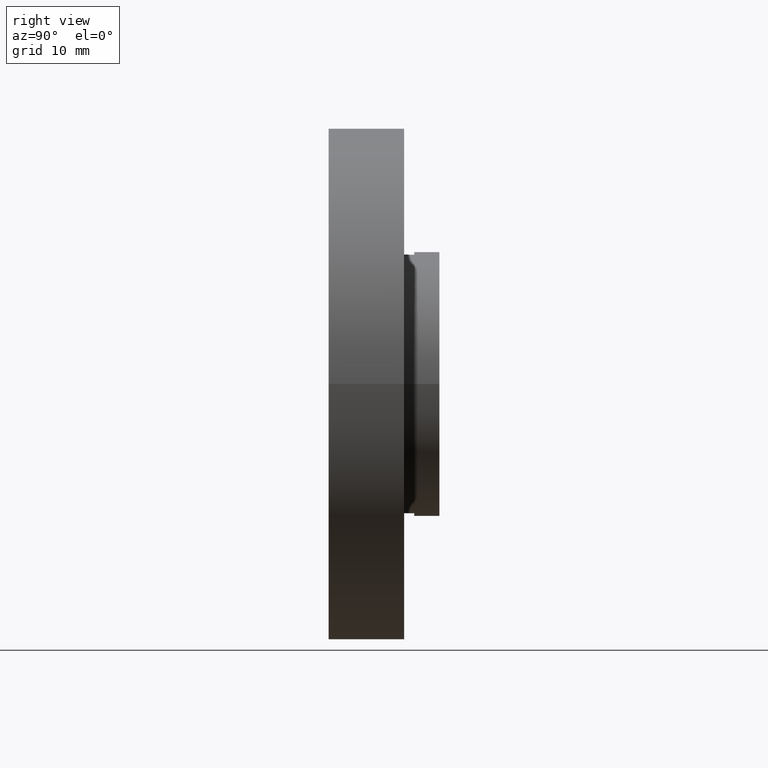
[diagram: clean part render]
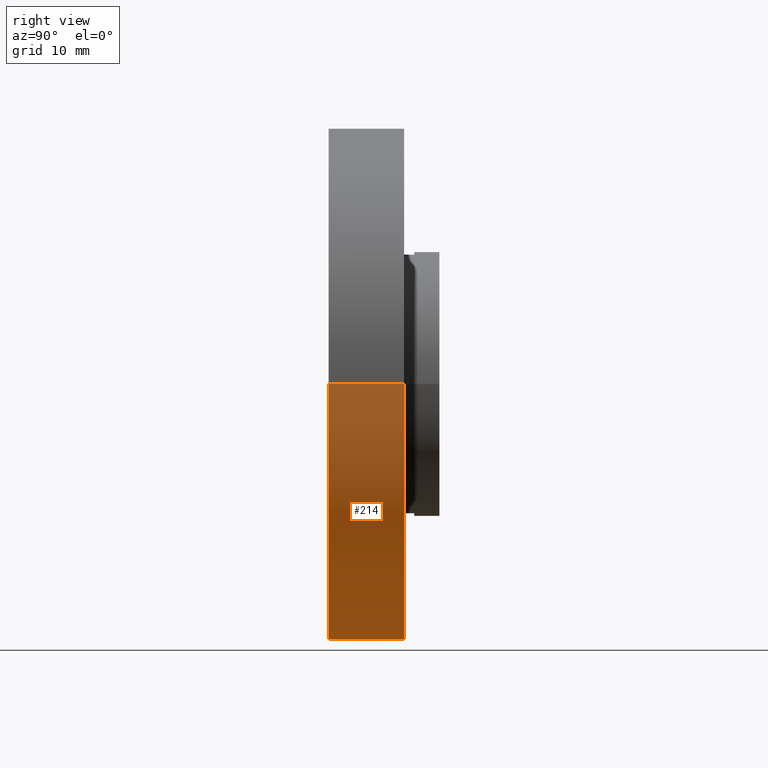
[diagram: same view with one face highlighted and labeled with its STEP entity id]
A machine part, right view. The second image highlights one B-rep face of the part: STEP entity #214.
In plain terms, the highlighted cylindrical surface (partial cylindrical patch) has radius 25.4 mm, axis along (-0, 1, -0).
Its self-contained STEP definition (entity closure, byte-faithful):
#5 = DIRECTION ( 'NONE',  ( -1.224646799147351000E-016, 1.000000000000000000, -0.0000000000000000000 ) ) ;
#6 = ORIENTED_EDGE ( 'NONE', *, *, #578, .T. ) ;
#18 = DIRECTION ( 'NONE',  ( -1.000000000000000000, -1.224646799147351000E-016, 0.0000000000000000000 ) ) ;
#20 = CARTESIAN_POINT ( 'NONE',  ( 1.149455719078123100E-015, 7.499999999999996400, 0.0000000000000000000 ) ) ;
#38 = CARTESIAN_POINT ( 'NONE',  ( -25.39999999999999100, -6.580049821787884700E-015, 0.0000000000000000000 ) ) ;
#65 = CARTESIAN_POINT ( 'NONE',  ( 25.39999999999999900, -3.588440821193433400E-016, 3.110602869834276900E-015 ) ) ;
#66 = DIRECTION ( 'NONE',  ( -1.224646799147351000E-016, 1.000000000000000000, -0.0000000000000000000 ) ) ;
#76 = VERTEX_POINT ( 'NONE', #38 ) ;
#77 = CIRCLE ( 'NONE', #227, 25.39999999999999500 ) ;
#83 = CYLINDRICAL_SURFACE ( 'NONE', #538, 25.39999999999999900 ) ;
#89 = CARTESIAN_POINT ( 'NONE',  ( 25.39999999999999900, 16.88601823708208000, 3.110602869834276900E-015 ) ) ;
#90 = VECTOR ( 'NONE', #165, 1000.000000000000000 ) ;
#153 = EDGE_CURVE ( 'NONE', #534, #500, #240, .T. ) ;
#165 = DIRECTION ( 'NONE',  ( -1.224646799147351000E-016, 1.000000000000000000, -0.0000000000000000000 ) ) ;
#180 = VECTOR ( 'NONE', #5, 1000.000000000000000 ) ;
#204 = LINE ( 'NONE', #586, #180 ) ;
#214 = ADVANCED_FACE ( 'NONE', ( #577 ), #83, .T. ) ;
#227 = AXIS2_PLACEMENT_3D ( 'NONE', #591, #346, #18 ) ;
#240 = CIRCLE ( 'NONE', #474, 25.39999999999999900 ) ;
#259 = CARTESIAN_POINT ( 'NONE',  ( 25.39999999999999900, 7.500000000000000000, 3.110602869834276900E-015 ) ) ;
#346 = DIRECTION ( 'NONE',  ( -1.224646799147351000E-016, 1.000000000000000000, -0.0000000000000000000 ) ) ;
#350 = DIRECTION ( 'NONE',  ( -1.000000000000000000, -1.365923996832131600E-016, 0.0000000000000000000 ) ) ;
#376 = ORIENTED_EDGE ( 'NONE', *, *, #484, .T. ) ;
#379 = EDGE_LOOP ( 'NONE', ( #555, #376, #6, #433 ) ) ;
#395 = DIRECTION ( 'NONE',  ( -1.224646799147351000E-016, 1.000000000000000000, -0.0000000000000000000 ) ) ;
#433 = ORIENTED_EDGE ( 'NONE', *, *, #153, .F. ) ;
#443 = LINE ( 'NONE', #89, #90 ) ;
#453 = DIRECTION ( 'NONE',  ( -1.000000000000000000, -1.365923996832131600E-016, 0.0000000000000000000 ) ) ;
#474 = AXIS2_PLACEMENT_3D ( 'NONE', #20, #395, #350 ) ;
#484 = EDGE_CURVE ( 'NONE', #610, #76, #77, .T. ) ;
#500 = VERTEX_POINT ( 'NONE', #593 ) ;
#534 = VERTEX_POINT ( 'NONE', #259 ) ;
#538 = AXIS2_PLACEMENT_3D ( 'NONE', #595, #66, #453 ) ;
#555 = ORIENTED_EDGE ( 'NONE', *, *, #585, .F. ) ;
#577 = FACE_OUTER_BOUND ( 'NONE', #379, .T. ) ;
#578 = EDGE_CURVE ( 'NONE', #76, #500, #204, .T. ) ;
#585 = EDGE_CURVE ( 'NONE', #610, #534, #443, .T. ) ;
#586 = CARTESIAN_POINT ( 'NONE',  ( -25.39999999999999900, 16.88601823708207300, 0.0000000000000000000 ) ) ;
#591 = CARTESIAN_POINT ( 'NONE',  ( 2.067940818438636500E-015, -3.469446951953614200E-015, 0.0000000000000000000 ) ) ;
#593 = CARTESIAN_POINT ( 'NONE',  ( -25.39999999999999900, 7.499999999999992900, 0.0000000000000000000 ) ) ;
#595 = CARTESIAN_POINT ( 'NONE',  ( 0.0000000000000000000, 16.88601823708207700, 0.0000000000000000000 ) ) ;
#610 = VERTEX_POINT ( 'NONE', #65 ) ;